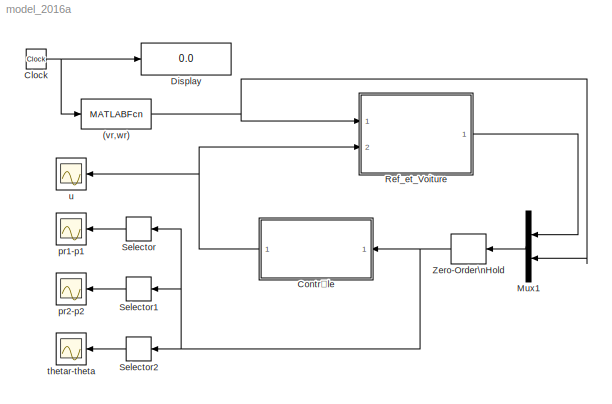
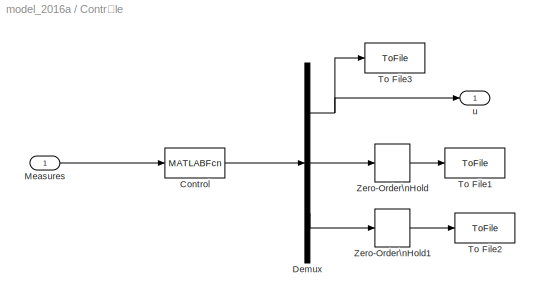
MODEL model_2016a
KIND model
BLOCK [MATLABFcn] (vr,wr)
  MATLABFcn = ur
  OutputDimensions = 2
  Ports = [1, 1]
  SID = 64
BLOCK [Clock] Clock
  SID = 17
BLOCK [SubSystem] Contrôle
  Ports = [1, 1]
  RequestExecContextInheritance = off
  SID = 69
  TreatAsAtomicUnit = on
BLOCK [MATLABFcn] Contrôle/Control
  MATLABFcn = control(u)
  OutputDimensions = 9
  Ports = [1, 1]
  SID = 73
BLOCK [Demux] Contrôle/Demux
  Outputs = [2 4 3]
  Ports = [1, 3]
  SID = 74
BLOCK [Inport] Contrôle/Measures
  IconDisplay = Port number
  SID = 72
BLOCK [ToFile] Contrôle/To File1
  Filename = voit.mat
  Ports = [1]
  SID = 75
BLOCK [ToFile] Contrôle/To File2
  Filename = ref.mat
  Ports = [1]
  SID = 76
BLOCK [ToFile] Contrôle/To File3
  Filename = cont.mat
  Ports = [1]
  SID = 77
BLOCK [ZeroOrderHold] Contrôle/Zero-Order\nHold
  SID = 78
  SampleTime = -1
BLOCK [ZeroOrderHold] Contrôle/Zero-Order\nHold1
  SID = 79
  SampleTime = -1
BLOCK [Outport] Contrôle/u
  IconDisplay = Port number
  SID = 80
BLOCK [Display] Display
  Decimation = 1
  Ports = [1]
  SID = 37
BLOCK [Mux] Mux1
  DisplayOption = bar
  Inputs = 2
  Ports = [2, 1]
  SID = 38
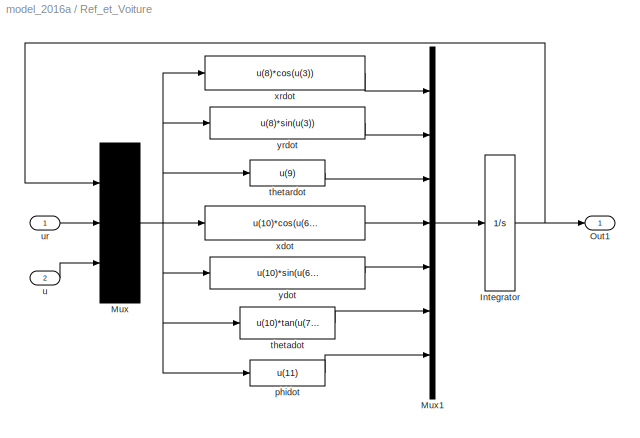
BLOCK [SubSystem] Ref_et_Voiture
  Ports = [2, 1]
  RequestExecContextInheritance = off
  SID = 39
BLOCK [Integrator] Ref_et_Voiture/Integrator
  InitialCondition = init
  Ports = [1, 1]
  SID = 42
BLOCK [Mux] Ref_et_Voiture/Mux
  Inputs = [7 2 2]
  Ports = [3, 1]
  SID = 43
BLOCK [Mux] Ref_et_Voiture/Mux1
  DisplayOption = bar
  Inputs = 7
  Ports = [7, 1]
  SID = 44
BLOCK [Outport] Ref_et_Voiture/Out1
  IconDisplay = Port number
  SID = 51
BLOCK [Fcn] Ref_et_Voiture/phidot
  Expr = u(11)
  SID = 65
BLOCK [Fcn] Ref_et_Voiture/thetadot
  Expr = u(10)*tan(u(7))/2
  SID = 45
BLOCK [Fcn] Ref_et_Voiture/thetardot
  Expr = u(9)
  SID = 68
BLOCK [Inport] Ref_et_Voiture/u
  IconDisplay = Port number
  Port = 2
  SID = 41
BLOCK [Inport] Ref_et_Voiture/ur
  IconDisplay = Port number
  SID = 40
BLOCK [Fcn] Ref_et_Voiture/xdot
  Expr = u(10)*cos(u(6))
  SID = 47
BLOCK [Fcn] Ref_et_Voiture/xrdot
  Expr = u(8)*cos(u(3))
  SID = 66
BLOCK [Fcn] Ref_et_Voiture/ydot
  Expr = u(10)*sin(u(6))
  SID = 49
BLOCK [Fcn] Ref_et_Voiture/yrdot
  Expr = u(8)*sin(u(3))
  SID = 67
BLOCK [Selector] Selector
  IndexOptions = Index vector (dialog)
  Indices = [1 4]
  InputPortWidth = 9
  OutputSizes = 1
  Ports = [1, 1]
  SID = 83
BLOCK [Selector] Selector1
  IndexOptions = Index vector (dialog)
  Indices = [2 5]
  InputPortWidth = 9
  OutputSizes = 1
  Ports = [1, 1]
  SID = 86
BLOCK [Selector] Selector2
  IndexOptions = Index vector (dialog)
  Indices = [3 6]
  InputPortWidth = 9
  OutputSizes = 1
  Ports = [1, 1]
  SID = 88
BLOCK [ZeroOrderHold] Zero-Order\nHold
  SID = 61
  SampleTime = 0.01
BLOCK [Scope] pr1-p1
  Floating = off
  NumInputPorts = 1
  Ports = [1]
  SID = 81
  ScopeSpecificationString = Simulink.scopes.TimeScopeBlockCfg('CurrentConfiguration', extmgr.ConfigurationSet(extmgr.Configuration('Core','General UI',true),extmgr.Configuration('Core','Source UI',true),extmgr.Configuration('Sources','WiredSimulink',true,'DataLoggingVariableName','ScopeData1'),extmgr.Configuration('Visuals','Time Domain',true,'SerializedDisplays',{struct('MinYLimReal','-3.86231','MaxYLimReal','34.76079','YLa...<+1417ch>
BLOCK [Scope] pr2-p2
  Floating = off
  NumInputPorts = 1
  Ports = [1]
  SID = 82
  ScopeSpecificationString = Simulink.scopes.TimeScopeBlockCfg('CurrentConfiguration', extmgr.ConfigurationSet(extmgr.Configuration('Core','General UI',true),extmgr.Configuration('Core','Source UI',true),extmgr.Configuration('Sources','WiredSimulink',true,'DataLoggingVariableName','ScopeData2'),extmgr.Configuration('Visuals','Time Domain',true),extmgr.Configuration('Tools','Plot Navigation',true),extmgr.Configuration('Tools',...<+40ch>
BLOCK [Scope] thetar-theta
  Floating = off
  NumInputPorts = 1
  Ports = [1]
  SID = 87
  ScopeSpecificationString = Simulink.scopes.TimeScopeBlockCfg('CurrentConfiguration', extmgr.ConfigurationSet(extmgr.Configuration('Core','General UI',true),extmgr.Configuration('Core','Source UI',true),extmgr.Configuration('Sources','WiredSimulink',true,'DataLoggingVariableName','ScopeData3'),extmgr.Configuration('Visuals','Time Domain',true),extmgr.Configuration('Tools','Plot Navigation',true),extmgr.Configuration('Tools',...<+40ch>
BLOCK [Scope] u
  Floating = off
  NumInputPorts = 1
  Ports = [1]
  SID = 57
  ScopeSpecificationString = Simulink.scopes.TimeScopeBlockCfg('CurrentConfiguration', extmgr.ConfigurationSet(extmgr.Configuration('Core','General UI',true),extmgr.Configuration('Core','Source UI',true),extmgr.Configuration('Sources','WiredSimulink',true,'DataLoggingSaveFormat','StructureWithTime','DataLoggingLimitDataPoints',true,'DataLoggingDecimation','1','DataLoggingDecimateData',true),extmgr.Configuration('Visuals','Tim...<+1639ch>
NET (vr,wr):1 -> Mux1:2, Ref_et_Voiture:1
NET Clock:1 -> (vr,wr):1, Display:1
LINE Contrôle/Control:1 -> Contrôle/Demux:1
NET Contrôle/Demux:1 -> Contrôle/To File3:1, Contrôle/u:1
LINE Contrôle/Demux:2 -> Contrôle/Zero-Order\nHold:1
LINE Contrôle/Demux:3 -> Contrôle/Zero-Order\nHold1:1
LINE Contrôle/Measures:1 -> Contrôle/Control:1
LINE Contrôle/Zero-Order\nHold1:1 -> Contrôle/To File2:1
LINE Contrôle/Zero-Order\nHold:1 -> Contrôle/To File1:1
NET Contrôle:1 -> Ref_et_Voiture:2, u:1
LINE Mux1:1 -> Zero-Order\nHold:1
NET Ref_et_Voiture/Integrator:1 -> Ref_et_Voiture/Mux:1, Ref_et_Voiture/Out1:1
LINE Ref_et_Voiture/Mux1:1 -> Ref_et_Voiture/Integrator:1
NET Ref_et_Voiture/Mux:1 -> Ref_et_Voiture/phidot:1, Ref_et_Voiture/thetadot:1, Ref_et_Voiture/thetardot:1, Ref_et_Voiture/xdot:1, Ref_et_Voiture/xrdot:1, Ref_et_Voiture/ydot:1, Ref_et_Voiture/yrdot:1
LINE Ref_et_Voiture/phidot:1 -> Ref_et_Voiture/Mux1:7
LINE Ref_et_Voiture/thetadot:1 -> Ref_et_Voiture/Mux1:6
LINE Ref_et_Voiture/thetardot:1 -> Ref_et_Voiture/Mux1:3
LINE Ref_et_Voiture/u:1 -> Ref_et_Voiture/Mux:3
LINE Ref_et_Voiture/ur:1 -> Ref_et_Voiture/Mux:2
LINE Ref_et_Voiture/xdot:1 -> Ref_et_Voiture/Mux1:4
LINE Ref_et_Voiture/xrdot:1 -> Ref_et_Voiture/Mux1:1
LINE Ref_et_Voiture/ydot:1 -> Ref_et_Voiture/Mux1:5
LINE Ref_et_Voiture/yrdot:1 -> Ref_et_Voiture/Mux1:2
LINE Ref_et_Voiture:1 -> Mux1:1
LINE Selector1:1 -> pr2-p2:1
LINE Selector2:1 -> thetar-theta:1
LINE Selector:1 -> pr1-p1:1
NET Zero-Order\nHold:1 -> Contrôle:1, Selector1:1, Selector2:1, Selector:1
note: NET lines group one-source signal fan-out (src -> all destinations, sorted); 1:1 wires keep LINE
